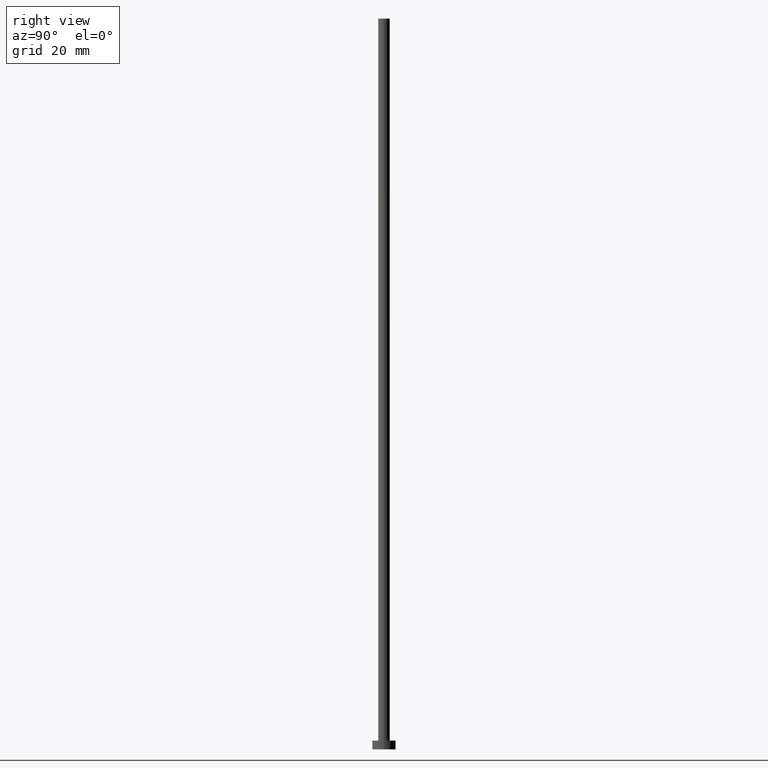
[diagram: clean part render]
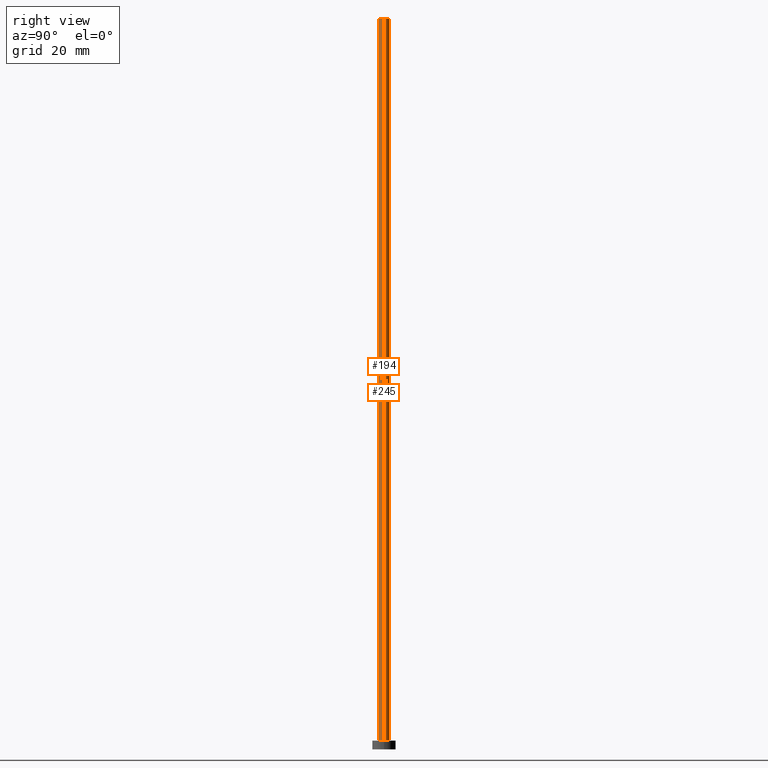
[diagram: same view with one multi-face feature highlighted, each face labeled with its STEP entity id]
A machine part, right view. The highlighted faces form ONE feature: a constant-radius fillet chain: 2 tangent blend faces with common blend radius 2 mm. The faces share edges in the B-rep.
Their STEP definitions:
[1] entity #194 (Cylinder):
#17 = EDGE_CURVE ( 'NONE', #224, #35, #218, .T. ) ;
#18 = DIRECTION ( 'NONE',  ( 1.000000000000000000, 0.000000000000000000, 0.000000000000000000 ) ) ;
#27 = VERTEX_POINT ( 'NONE', #234 ) ;
#33 = CARTESIAN_POINT ( 'NONE',  ( -2.000000000000000000, 0.000000000000000000, 250.0000000000000000 ) ) ;
#35 = VERTEX_POINT ( 'NONE', #109 ) ;
#48 = CYLINDRICAL_SURFACE ( 'NONE', #128, 2.000000000000000000 ) ;
#51 = DIRECTION ( 'NONE',  ( -0.000000000000000000, -0.000000000000000000, -1.000000000000000000 ) ) ;
#53 = CARTESIAN_POINT ( 'NONE',  ( 0.000000000000000000, 0.000000000000000000, 250.0000000000000000 ) ) ;
#55 = DIRECTION ( 'NONE',  ( 0.000000000000000000, 0.000000000000000000, 1.000000000000000000 ) ) ;
#81 = DIRECTION ( 'NONE',  ( -0.000000000000000000, -0.000000000000000000, -1.000000000000000000 ) ) ;
#102 = ORIENTED_EDGE ( 'NONE', *, *, #17, .T. ) ;
#109 = CARTESIAN_POINT ( 'NONE',  ( 2.000000000000000000, 2.449293598294706414E-16, 3.000000000000000000 ) ) ;
#110 = AXIS2_PLACEMENT_3D ( 'NONE', #53, #135, #212 ) ;
#119 = CARTESIAN_POINT ( 'NONE',  ( 2.000000000000000000, 2.449293598294706414E-16, 250.0000000000000000 ) ) ;
#123 = FACE_OUTER_BOUND ( 'NONE', #180, .T. ) ;
#128 = AXIS2_PLACEMENT_3D ( 'NONE', #204, #81, #226 ) ;
#129 = EDGE_CURVE ( 'NONE', #246, #224, #237, .T. ) ;
#135 = DIRECTION ( 'NONE',  ( 0.000000000000000000, 0.000000000000000000, 1.000000000000000000 ) ) ;
#137 = EDGE_CURVE ( 'NONE', #246, #27, #231, .T. ) ;
#140 = LINE ( 'NONE', #119, #215 ) ;
#146 = CARTESIAN_POINT ( 'NONE',  ( -2.000000000000000000, 0.000000000000000000, 250.0000000000000000 ) ) ;
#157 = EDGE_CURVE ( 'NONE', #27, #35, #140, .T. ) ;
#162 = AXIS2_PLACEMENT_3D ( 'NONE', #169, #55, #18 ) ;
#163 = CARTESIAN_POINT ( 'NONE',  ( -2.000000000000000000, 0.000000000000000000, 3.000000000000000000 ) ) ;
#169 = CARTESIAN_POINT ( 'NONE',  ( 0.000000000000000000, 0.000000000000000000, 3.000000000000000000 ) ) ;
#180 = EDGE_LOOP ( 'NONE', ( #223, #248, #229, #102 ) ) ;
#194 = ADVANCED_FACE ( 'NONE', ( #123 ), #48, .T. ) ;
#195 = DIRECTION ( 'NONE',  ( -0.000000000000000000, -0.000000000000000000, -1.000000000000000000 ) ) ;
#204 = CARTESIAN_POINT ( 'NONE',  ( 0.000000000000000000, 0.000000000000000000, 250.0000000000000000 ) ) ;
#212 = DIRECTION ( 'NONE',  ( 1.000000000000000000, 0.000000000000000000, 0.000000000000000000 ) ) ;
#215 = VECTOR ( 'NONE', #195, 1000.000000000000000 ) ;
#218 = CIRCLE ( 'NONE', #162, 2.000000000000000000 ) ;
#223 = ORIENTED_EDGE ( 'NONE', *, *, #157, .F. ) ;
#224 = VERTEX_POINT ( 'NONE', #163 ) ;
#226 = DIRECTION ( 'NONE',  ( -1.000000000000000000, 0.000000000000000000, 0.000000000000000000 ) ) ;
#229 = ORIENTED_EDGE ( 'NONE', *, *, #129, .T. ) ;
#231 = CIRCLE ( 'NONE', #110, 2.000000000000000000 ) ;
#234 = CARTESIAN_POINT ( 'NONE',  ( 2.000000000000000000, 2.449293598294706414E-16, 250.0000000000000000 ) ) ;
#235 = VECTOR ( 'NONE', #51, 1000.000000000000000 ) ;
#237 = LINE ( 'NONE', #146, #235 ) ;
#246 = VERTEX_POINT ( 'NONE', #33 ) ;
#248 = ORIENTED_EDGE ( 'NONE', *, *, #137, .F. ) ;
[2] entity #245 (Cylinder):
#10 = DIRECTION ( 'NONE',  ( -1.000000000000000000, 0.000000000000000000, 0.000000000000000000 ) ) ;
#22 = AXIS2_PLACEMENT_3D ( 'NONE', #181, #250, #177 ) ;
#27 = VERTEX_POINT ( 'NONE', #234 ) ;
#28 = DIRECTION ( 'NONE',  ( 1.000000000000000000, 0.000000000000000000, 0.000000000000000000 ) ) ;
#30 = DIRECTION ( 'NONE',  ( 0.000000000000000000, 0.000000000000000000, 1.000000000000000000 ) ) ;
#31 = ORIENTED_EDGE ( 'NONE', *, *, #211, .T. ) ;
#33 = CARTESIAN_POINT ( 'NONE',  ( -2.000000000000000000, 0.000000000000000000, 250.0000000000000000 ) ) ;
#35 = VERTEX_POINT ( 'NONE', #109 ) ;
#51 = DIRECTION ( 'NONE',  ( -0.000000000000000000, -0.000000000000000000, -1.000000000000000000 ) ) ;
#60 = EDGE_LOOP ( 'NONE', ( #74, #125, #31, #227 ) ) ;
#63 = CARTESIAN_POINT ( 'NONE',  ( 0.000000000000000000, 0.000000000000000000, 250.0000000000000000 ) ) ;
#74 = ORIENTED_EDGE ( 'NONE', *, *, #243, .F. ) ;
#109 = CARTESIAN_POINT ( 'NONE',  ( 2.000000000000000000, 2.449293598294706414E-16, 3.000000000000000000 ) ) ;
#119 = CARTESIAN_POINT ( 'NONE',  ( 2.000000000000000000, 2.449293598294706414E-16, 250.0000000000000000 ) ) ;
#122 = CIRCLE ( 'NONE', #22, 2.000000000000000000 ) ;
#125 = ORIENTED_EDGE ( 'NONE', *, *, #157, .T. ) ;
#126 = CARTESIAN_POINT ( 'NONE',  ( 0.000000000000000000, 0.000000000000000000, 3.000000000000000000 ) ) ;
#129 = EDGE_CURVE ( 'NONE', #246, #224, #237, .T. ) ;
#140 = LINE ( 'NONE', #119, #215 ) ;
#146 = CARTESIAN_POINT ( 'NONE',  ( -2.000000000000000000, 0.000000000000000000, 250.0000000000000000 ) ) ;
#156 = AXIS2_PLACEMENT_3D ( 'NONE', #63, #184, #10 ) ;
#157 = EDGE_CURVE ( 'NONE', #27, #35, #140, .T. ) ;
#161 = FACE_OUTER_BOUND ( 'NONE', #60, .T. ) ;
#163 = CARTESIAN_POINT ( 'NONE',  ( -2.000000000000000000, 0.000000000000000000, 3.000000000000000000 ) ) ;
#177 = DIRECTION ( 'NONE',  ( 1.000000000000000000, 0.000000000000000000, 0.000000000000000000 ) ) ;
#181 = CARTESIAN_POINT ( 'NONE',  ( 0.000000000000000000, 0.000000000000000000, 250.0000000000000000 ) ) ;
#184 = DIRECTION ( 'NONE',  ( -0.000000000000000000, -0.000000000000000000, -1.000000000000000000 ) ) ;
#195 = DIRECTION ( 'NONE',  ( -0.000000000000000000, -0.000000000000000000, -1.000000000000000000 ) ) ;
#211 = EDGE_CURVE ( 'NONE', #35, #224, #240, .T. ) ;
#215 = VECTOR ( 'NONE', #195, 1000.000000000000000 ) ;
#221 = CYLINDRICAL_SURFACE ( 'NONE', #156, 2.000000000000000000 ) ;
#224 = VERTEX_POINT ( 'NONE', #163 ) ;
#225 = AXIS2_PLACEMENT_3D ( 'NONE', #126, #30, #28 ) ;
#227 = ORIENTED_EDGE ( 'NONE', *, *, #129, .F. ) ;
#234 = CARTESIAN_POINT ( 'NONE',  ( 2.000000000000000000, 2.449293598294706414E-16, 250.0000000000000000 ) ) ;
#235 = VECTOR ( 'NONE', #51, 1000.000000000000000 ) ;
#237 = LINE ( 'NONE', #146, #235 ) ;
#240 = CIRCLE ( 'NONE', #225, 2.000000000000000000 ) ;
#243 = EDGE_CURVE ( 'NONE', #27, #246, #122, .T. ) ;
#245 = ADVANCED_FACE ( 'NONE', ( #161 ), #221, .T. ) ;
#246 = VERTEX_POINT ( 'NONE', #33 ) ;
#250 = DIRECTION ( 'NONE',  ( 0.000000000000000000, 0.000000000000000000, 1.000000000000000000 ) ) ;